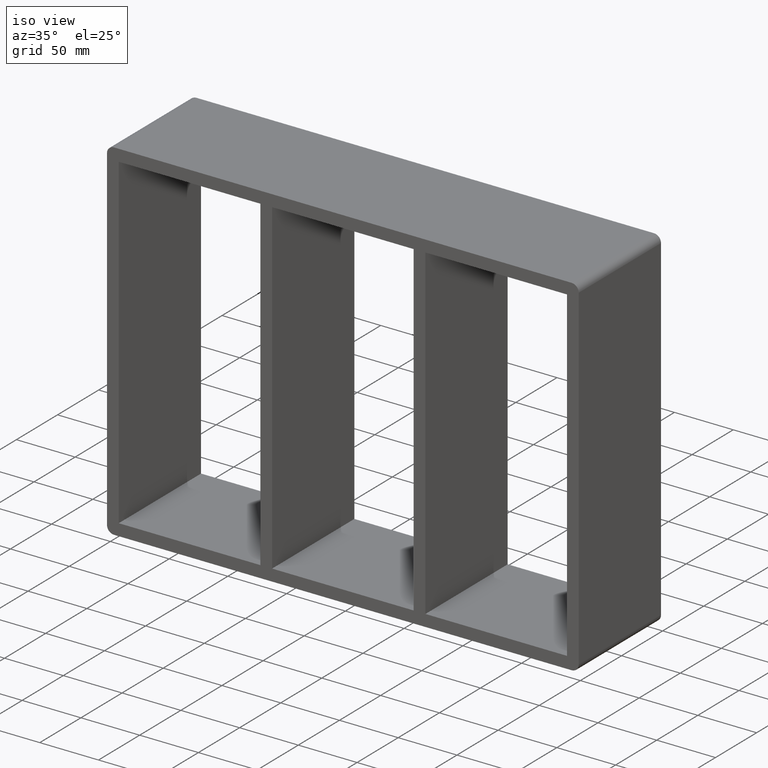
[diagram: clean part render]
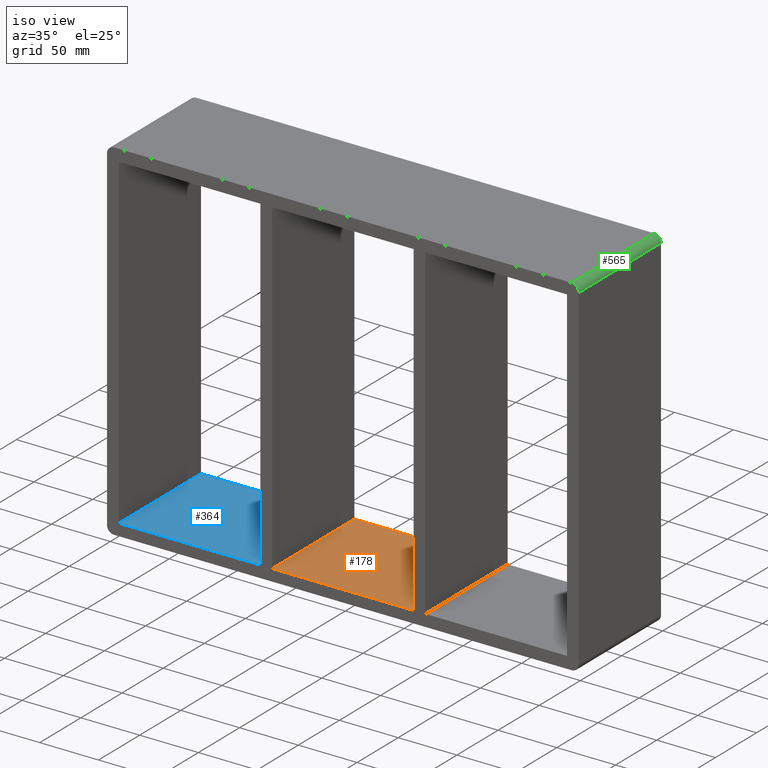
[diagram: same view with three faces highlighted in distinct colors, each labeled with its STEP entity id]
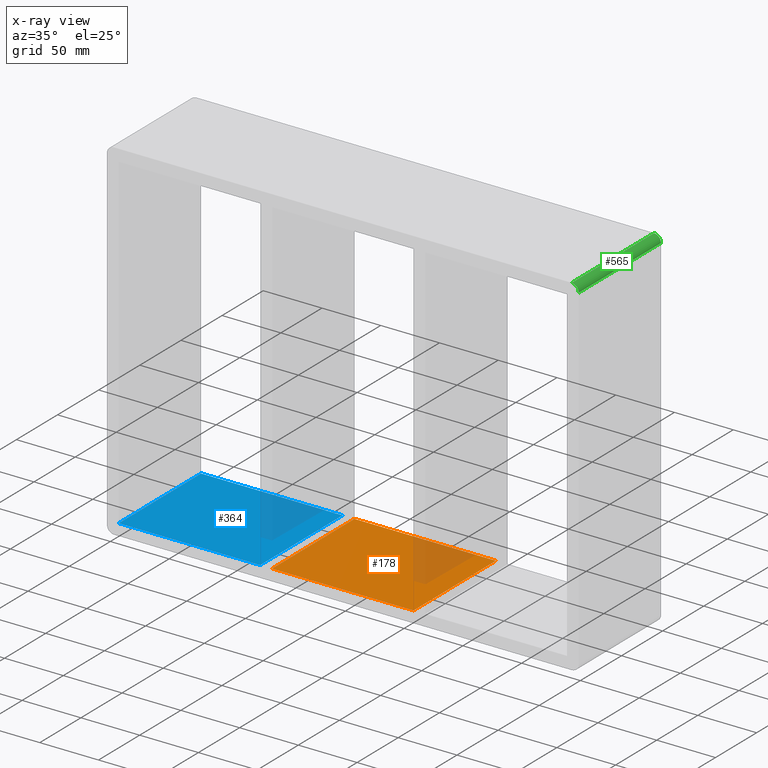
[diagram: x-ray of the same camera — body ghosted, the three highlighted faces saturated]
A machine part, iso view with three faces highlighted in distinct colors.
The next image is the same camera in x-ray (body ghosted, the three faces saturated) — at least one of them is partly hidden behind the body in this view.
Their STEP definitions:

[orange] entity #178 — the highlighted planar face has unit normal (0, 0, -1).
#73=CARTESIAN_POINT('',(60.24999999998407,-3.0,-139.0));
#74=VERTEX_POINT('',#73);
#91=CARTESIAN_POINT('',(60.24999999998407,97.0,-139.0));
#92=VERTEX_POINT('',#91);
#99=CARTESIAN_POINT('',(60.24999999998407,-3.0,-139.0));
#100=DIRECTION('',(0.0,1.0,0.0));
#101=VECTOR('',#100,100.0);
#102=LINE('',#99,#101);
#103=EDGE_CURVE('',#74,#92,#102,.T.);
#148=CARTESIAN_POINT('',(190.75,0.0,-139.0));
#149=DIRECTION('',(0.0,0.0,-1.0));
#150=DIRECTION('',(-1.0,0.0,0.0));
#151=AXIS2_PLACEMENT_3D('',#148,#149,#150);
#152=PLANE('',#151);
#153=ORIENTED_EDGE('',*,*,#103,.T.);
#154=CARTESIAN_POINT('',(-60.250000000005457,97.0,-138.99999999999804));
#155=VERTEX_POINT('',#154);
#156=CARTESIAN_POINT('',(-60.250000000005457,97.0,-139.0));
#157=DIRECTION('',(1.0,0.0,0.0));
#158=VECTOR('',#157,120.49999999998953);
#159=LINE('',#156,#158);
#160=EDGE_CURVE('',#155,#92,#159,.T.);
#161=ORIENTED_EDGE('',*,*,#160,.F.);
#162=CARTESIAN_POINT('',(-60.250000000005457,-3.0,-138.99999999999804));
#163=VERTEX_POINT('',#162);
#164=CARTESIAN_POINT('',(-60.250000000005457,97.0,-139.0));
#165=DIRECTION('',(0.0,-1.0,0.0));
#166=VECTOR('',#165,100.0);
#167=LINE('',#164,#166);
#168=EDGE_CURVE('',#155,#163,#167,.T.);
#169=ORIENTED_EDGE('',*,*,#168,.T.);
#170=CARTESIAN_POINT('',(60.24999999998407,-3.0,-139.0));
#171=DIRECTION('',(-1.0,0.0,0.0));
#172=VECTOR('',#171,120.49999999998953);
#173=LINE('',#170,#172);
#174=EDGE_CURVE('',#74,#163,#173,.T.);
#175=ORIENTED_EDGE('',*,*,#174,.F.);
#176=EDGE_LOOP('',(#153,#161,#169,#175));
#177=FACE_OUTER_BOUND('',#176,.T.);
#178=ADVANCED_FACE('',(#177),#152,.F.);

[blue] entity #364 — the highlighted planar face has unit normal (0, 0, -1).
#277=CARTESIAN_POINT('',(-70.250000000015945,-3.0,-139.0));
#278=VERTEX_POINT('',#277);
#295=CARTESIAN_POINT('',(-70.250000000015945,97.0,-139.0));
#296=VERTEX_POINT('',#295);
#303=CARTESIAN_POINT('',(-70.250000000015945,-3.0,-139.0));
#304=DIRECTION('',(0.0,1.0,0.0));
#305=VECTOR('',#304,100.0);
#306=LINE('',#303,#305);
#307=EDGE_CURVE('',#278,#296,#306,.T.);
#334=CARTESIAN_POINT('',(190.75,0.0,-139.0));
#335=DIRECTION('',(0.0,0.0,-1.0));
#336=DIRECTION('',(-1.0,0.0,0.0));
#337=AXIS2_PLACEMENT_3D('',#334,#335,#336);
#338=PLANE('',#337);
#339=ORIENTED_EDGE('',*,*,#307,.T.);
#340=CARTESIAN_POINT('',(-190.75000000000006,97.0,-139.0));
#341=VERTEX_POINT('',#340);
#342=CARTESIAN_POINT('',(-190.75000000000006,97.0,-139.0));
#343=DIRECTION('',(1.0,0.0,0.0));
#344=VECTOR('',#343,120.49999999998414);
#345=LINE('',#342,#344);
#346=EDGE_CURVE('',#341,#296,#345,.T.);
#347=ORIENTED_EDGE('',*,*,#346,.F.);
#348=CARTESIAN_POINT('',(-190.75000000000006,-3.0,-139.0));
#349=VERTEX_POINT('',#348);
#350=CARTESIAN_POINT('',(-190.75000000000003,-3.0,-139.0));
#351=DIRECTION('',(0.0,1.0,0.0));
#352=VECTOR('',#351,100.0);
#353=LINE('',#350,#352);
#354=EDGE_CURVE('',#349,#341,#353,.T.);
#355=ORIENTED_EDGE('',*,*,#354,.F.);
#356=CARTESIAN_POINT('',(-70.250000000015916,-3.0,-139.0));
#357=DIRECTION('',(-1.0,0.0,0.0));
#358=VECTOR('',#357,120.49999999998414);
#359=LINE('',#356,#358);
#360=EDGE_CURVE('',#278,#349,#359,.T.);
#361=ORIENTED_EDGE('',*,*,#360,.F.);
#362=EDGE_LOOP('',(#339,#347,#355,#361));
#363=FACE_OUTER_BOUND('',#362,.T.);
#364=ADVANCED_FACE('',(#363),#338,.F.);

[green] entity #565 — the highlighted cylindrical surface (edge-blend (fillet) strip) has radius 6 mm, axis along (0, 1, 0).
#447=CARTESIAN_POINT('',(200.75000000000003,-3.0,143.0));
#448=VERTEX_POINT('',#447);
#455=CARTESIAN_POINT('',(194.75,-3.0,149.00000000000003));
#456=VERTEX_POINT('',#455);
#457=CARTESIAN_POINT('',(194.75,-3.0,143.00000000000003));
#458=DIRECTION('',(0.0,-1.0,0.0));
#459=DIRECTION('',(0.0,0.0,1.0));
#460=AXIS2_PLACEMENT_3D('',#457,#458,#459);
#461=CIRCLE('',#460,6.000000000000001);
#462=EDGE_CURVE('',#448,#456,#461,.T.);
#534=CARTESIAN_POINT('',(194.75,0.0,143.00000000000003));
#535=DIRECTION('',(0.0,1.0,0.0));
#536=DIRECTION('',(0.0,0.0,1.0));
#537=AXIS2_PLACEMENT_3D('',#534,#535,#536);
#538=CYLINDRICAL_SURFACE('',#537,6.000000000000001);
#539=CARTESIAN_POINT('',(200.75000000000003,97.0,143.0));
#540=VERTEX_POINT('',#539);
#541=CARTESIAN_POINT('',(200.75000000000003,97.0,143.0));
#542=DIRECTION('',(0.0,-1.0,0.0));
#543=VECTOR('',#542,100.0);
#544=LINE('',#541,#543);
#545=EDGE_CURVE('',#540,#448,#544,.T.);
#546=ORIENTED_EDGE('',*,*,#545,.F.);
#547=CARTESIAN_POINT('',(194.75,97.0,149.00000000000003));
#548=VERTEX_POINT('',#547);
#549=CARTESIAN_POINT('',(194.75,97.0,143.00000000000003));
#550=DIRECTION('',(0.0,1.0,0.0));
#551=DIRECTION('',(0.0,0.0,1.0));
#552=AXIS2_PLACEMENT_3D('',#549,#550,#551);
#553=CIRCLE('',#552,6.000000000000001);
#554=EDGE_CURVE('',#548,#540,#553,.T.);
#555=ORIENTED_EDGE('',*,*,#554,.F.);
#556=CARTESIAN_POINT('',(194.75,-3.0,149.00000000000003));
#557=DIRECTION('',(0.0,1.0,0.0));
#558=VECTOR('',#557,100.0);
#559=LINE('',#556,#558);
#560=EDGE_CURVE('',#456,#548,#559,.T.);
#561=ORIENTED_EDGE('',*,*,#560,.F.);
#562=ORIENTED_EDGE('',*,*,#462,.F.);
#563=EDGE_LOOP('',(#546,#555,#561,#562));
#564=FACE_OUTER_BOUND('',#563,.T.);
#565=ADVANCED_FACE('',(#564),#538,.T.);